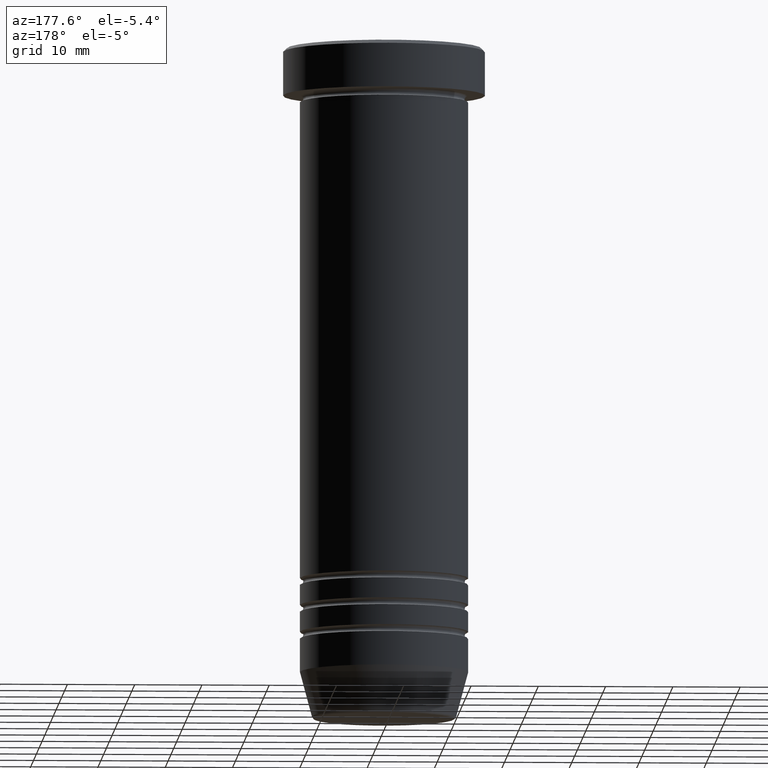
[diagram: clean part render]
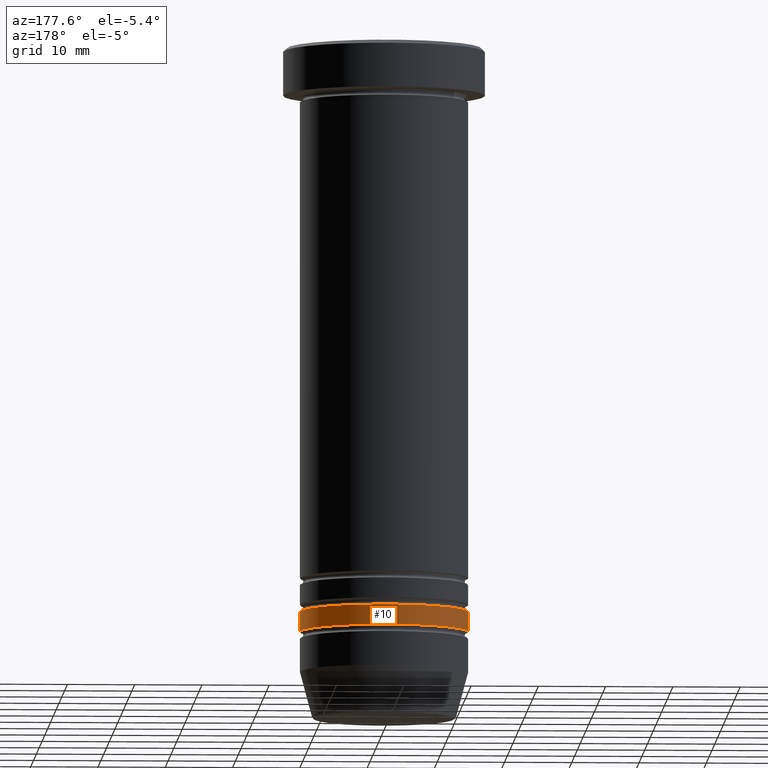
[diagram: same view with one face highlighted and labeled with its STEP entity id]
A machine part, auxiliary view. The second image highlights one B-rep face of the part: STEP entity #10.
In plain terms, the highlighted cylindrical surface (partial cylindrical patch) has radius 12.5 mm, axis along (-0, -0, 1).
Its self-contained STEP definition (entity closure, byte-faithful):
#10 = ADVANCED_FACE ( 'NONE', ( #821 ), #582, .T. ) ;
#14 = VECTOR ( 'NONE', #613, 1000.000000000000000 ) ;
#22 = CARTESIAN_POINT ( 'NONE',  ( 12.49999999999999289, 0.000000000000000000, -87.00000000000000000 ) ) ;
#23 = ORIENTED_EDGE ( 'NONE', *, *, #418, .F. ) ;
#39 = LINE ( 'NONE', #59, #14 ) ;
#59 = CARTESIAN_POINT ( 'NONE',  ( -12.49999999999999645, 1.530808498934191127E-15, 0.000000000000000000 ) ) ;
#92 = DIRECTION ( 'NONE',  ( 1.000000000000000000, 0.000000000000000000, 0.000000000000000000 ) ) ;
#147 = CARTESIAN_POINT ( 'NONE',  ( 12.49999999999999645, 0.000000000000000000, 0.000000000000000000 ) ) ;
#181 = AXIS2_PLACEMENT_3D ( 'NONE', #504, #910, #92 ) ;
#249 = AXIS2_PLACEMENT_3D ( 'NONE', #479, #395, #723 ) ;
#269 = EDGE_CURVE ( 'NONE', #585, #482, #415, .T. ) ;
#304 = ORIENTED_EDGE ( 'NONE', *, *, #269, .T. ) ;
#364 = EDGE_CURVE ( 'NONE', #898, #938, #664, .T. ) ;
#381 = AXIS2_PLACEMENT_3D ( 'NONE', #651, #1053, #812 ) ;
#384 = VECTOR ( 'NONE', #965, 1000.000000000000000 ) ;
#395 = DIRECTION ( 'NONE',  ( -0.000000000000000000, -0.000000000000000000, 1.000000000000000000 ) ) ;
#415 = CIRCLE ( 'NONE', #381, 12.49999999999999289 ) ;
#418 = EDGE_CURVE ( 'NONE', #585, #898, #639, .T. ) ;
#432 = ORIENTED_EDGE ( 'NONE', *, *, #364, .F. ) ;
#463 = CARTESIAN_POINT ( 'NONE',  ( -12.50000000000000000, 1.530808498934191521E-15, -83.99999999999998579 ) ) ;
#479 = CARTESIAN_POINT ( 'NONE',  ( 0.000000000000000000, 0.000000000000000000, -83.99999999999998579 ) ) ;
#482 = VERTEX_POINT ( 'NONE', #989 ) ;
#504 = CARTESIAN_POINT ( 'NONE',  ( 0.000000000000000000, 0.000000000000000000, 0.000000000000000000 ) ) ;
#582 = CYLINDRICAL_SURFACE ( 'NONE', #181, 12.49999999999999645 ) ;
#585 = VERTEX_POINT ( 'NONE', #22 ) ;
#613 = DIRECTION ( 'NONE',  ( -0.000000000000000000, -0.000000000000000000, 1.000000000000000000 ) ) ;
#639 = LINE ( 'NONE', #147, #384 ) ;
#651 = CARTESIAN_POINT ( 'NONE',  ( 0.000000000000000000, 0.000000000000000000, -87.00000000000000000 ) ) ;
#664 = CIRCLE ( 'NONE', #249, 12.50000000000000000 ) ;
#723 = DIRECTION ( 'NONE',  ( 1.000000000000000000, 0.000000000000000000, 0.000000000000000000 ) ) ;
#791 = CARTESIAN_POINT ( 'NONE',  ( 12.50000000000000000, 0.000000000000000000, -83.99999999999998579 ) ) ;
#801 = ORIENTED_EDGE ( 'NONE', *, *, #892, .T. ) ;
#812 = DIRECTION ( 'NONE',  ( 1.000000000000000000, 0.000000000000000000, 0.000000000000000000 ) ) ;
#821 = FACE_OUTER_BOUND ( 'NONE', #1031, .T. ) ;
#892 = EDGE_CURVE ( 'NONE', #482, #938, #39, .T. ) ;
#898 = VERTEX_POINT ( 'NONE', #791 ) ;
#910 = DIRECTION ( 'NONE',  ( -0.000000000000000000, -0.000000000000000000, 1.000000000000000000 ) ) ;
#938 = VERTEX_POINT ( 'NONE', #463 ) ;
#965 = DIRECTION ( 'NONE',  ( -0.000000000000000000, -0.000000000000000000, 1.000000000000000000 ) ) ;
#989 = CARTESIAN_POINT ( 'NONE',  ( -12.49999999999999289, 1.530808498934190930E-15, -87.00000000000000000 ) ) ;
#1031 = EDGE_LOOP ( 'NONE', ( #304, #801, #432, #23 ) ) ;
#1053 = DIRECTION ( 'NONE',  ( -0.000000000000000000, -0.000000000000000000, 1.000000000000000000 ) ) ;